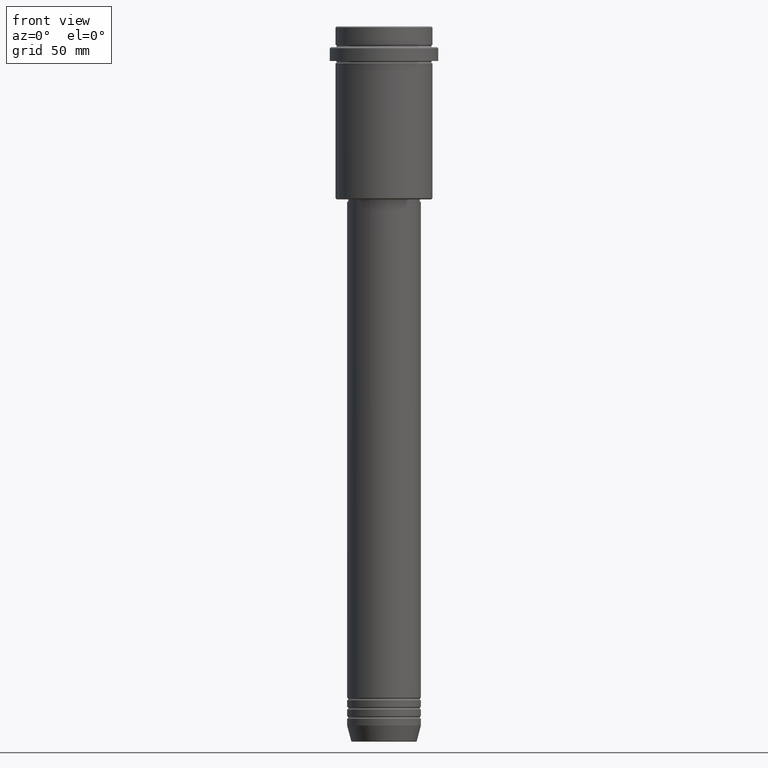
[diagram: clean part render]
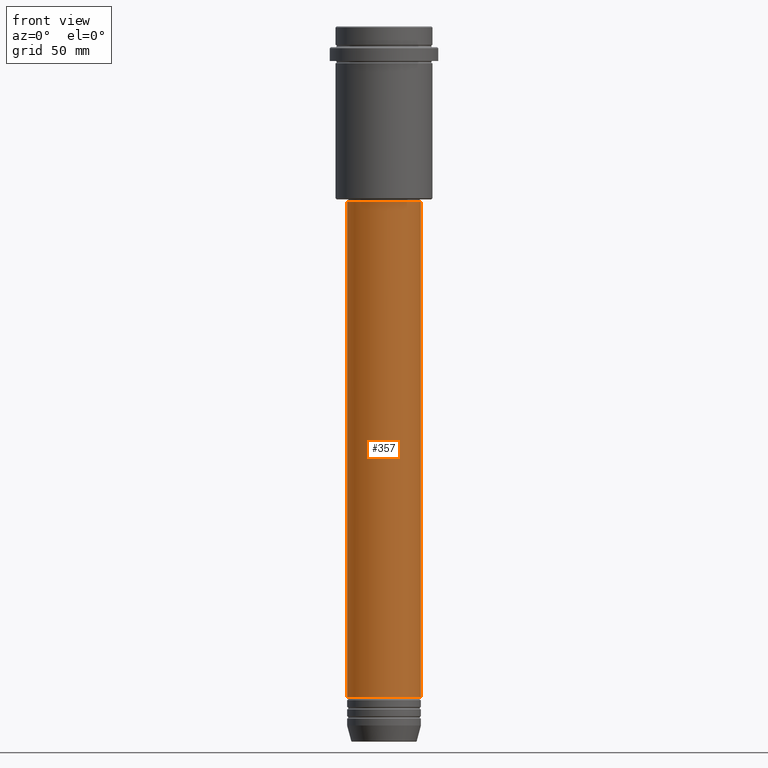
[diagram: same view with one face highlighted and labeled with its STEP entity id]
A machine part, front view. The second image highlights one B-rep face of the part: STEP entity #357.
In plain terms, the highlighted cylindrical surface (partial cylindrical patch) has radius 16 mm, axis along (-0, -0, 1).
Its self-contained STEP definition (entity closure, byte-faithful):
#27 = ORIENTED_EDGE ( 'NONE', *, *, #868, .T. ) ;
#67 = EDGE_LOOP ( 'NONE', ( #883, #27, #660, #128 ) ) ;
#84 = DIRECTION ( 'NONE',  ( -0.000000000000000000, -0.000000000000000000, 1.000000000000000000 ) ) ;
#88 = VERTEX_POINT ( 'NONE', #782 ) ;
#100 = CARTESIAN_POINT ( 'NONE',  ( 0.000000000000000000, 0.000000000000000000, -290.9999999999998863 ) ) ;
#128 = ORIENTED_EDGE ( 'NONE', *, *, #480, .F. ) ;
#218 = CARTESIAN_POINT ( 'NONE',  ( 16.00000000000000000, 0.000000000000000000, 0.000000000000000000 ) ) ;
#222 = CARTESIAN_POINT ( 'NONE',  ( -16.00000000000000000, 1.959434878635765131E-15, -290.9999999999998863 ) ) ;
#296 = CIRCLE ( 'NONE', #1277, 16.00000000000000000 ) ;
#357 = ADVANCED_FACE ( 'NONE', ( #1374 ), #625, .T. ) ;
#365 = AXIS2_PLACEMENT_3D ( 'NONE', #848, #656, #1209 ) ;
#407 = VERTEX_POINT ( 'NONE', #222 ) ;
#416 = AXIS2_PLACEMENT_3D ( 'NONE', #982, #1403, #1305 ) ;
#480 = EDGE_CURVE ( 'NONE', #88, #502, #665, .T. ) ;
#502 = VERTEX_POINT ( 'NONE', #887 ) ;
#625 = CYLINDRICAL_SURFACE ( 'NONE', #365, 16.00000000000000000 ) ;
#656 = DIRECTION ( 'NONE',  ( -0.000000000000000000, -0.000000000000000000, 1.000000000000000000 ) ) ;
#658 = DIRECTION ( 'NONE',  ( -0.000000000000000000, -0.000000000000000000, 1.000000000000000000 ) ) ;
#660 = ORIENTED_EDGE ( 'NONE', *, *, #1380, .T. ) ;
#665 = CIRCLE ( 'NONE', #416, 16.00000000000000355 ) ;
#782 = CARTESIAN_POINT ( 'NONE',  ( -16.00000000000000355, 1.959434878635765526E-15, -75.99999999999992895 ) ) ;
#800 = VERTEX_POINT ( 'NONE', #980 ) ;
#848 = CARTESIAN_POINT ( 'NONE',  ( 0.000000000000000000, 0.000000000000000000, 0.000000000000000000 ) ) ;
#868 = EDGE_CURVE ( 'NONE', #407, #800, #296, .T. ) ;
#883 = ORIENTED_EDGE ( 'NONE', *, *, #1294, .F. ) ;
#885 = DIRECTION ( 'NONE',  ( 1.000000000000000000, 0.000000000000000000, 0.000000000000000000 ) ) ;
#887 = CARTESIAN_POINT ( 'NONE',  ( 16.00000000000000355, 0.000000000000000000, -75.99999999999992895 ) ) ;
#977 = LINE ( 'NONE', #1286, #1019 ) ;
#980 = CARTESIAN_POINT ( 'NONE',  ( 16.00000000000000000, 0.000000000000000000, -290.9999999999998863 ) ) ;
#982 = CARTESIAN_POINT ( 'NONE',  ( 0.000000000000000000, 0.000000000000000000, -75.99999999999992895 ) ) ;
#997 = DIRECTION ( 'NONE',  ( -0.000000000000000000, -0.000000000000000000, 1.000000000000000000 ) ) ;
#1019 = VECTOR ( 'NONE', #658, 1000.000000000000000 ) ;
#1169 = VECTOR ( 'NONE', #997, 1000.000000000000000 ) ;
#1209 = DIRECTION ( 'NONE',  ( 1.000000000000000000, 0.000000000000000000, 0.000000000000000000 ) ) ;
#1277 = AXIS2_PLACEMENT_3D ( 'NONE', #100, #84, #885 ) ;
#1286 = CARTESIAN_POINT ( 'NONE',  ( -16.00000000000000000, 1.959434878635765131E-15, 0.000000000000000000 ) ) ;
#1294 = EDGE_CURVE ( 'NONE', #407, #88, #977, .T. ) ;
#1305 = DIRECTION ( 'NONE',  ( 1.000000000000000000, 0.000000000000000000, 0.000000000000000000 ) ) ;
#1307 = LINE ( 'NONE', #218, #1169 ) ;
#1374 = FACE_OUTER_BOUND ( 'NONE', #67, .T. ) ;
#1380 = EDGE_CURVE ( 'NONE', #800, #502, #1307, .T. ) ;
#1403 = DIRECTION ( 'NONE',  ( -0.000000000000000000, -0.000000000000000000, 1.000000000000000000 ) ) ;